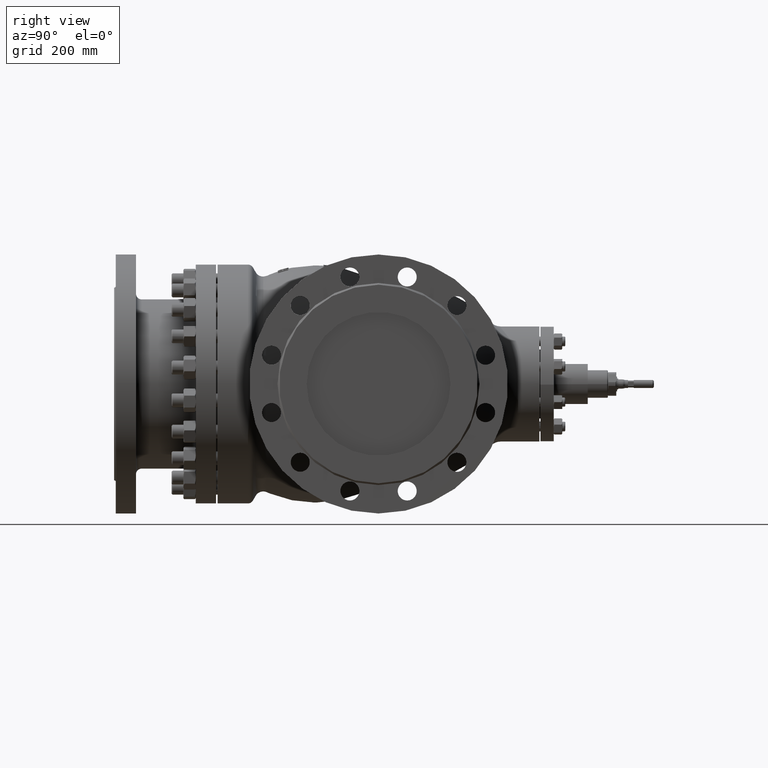
[diagram: clean part render]
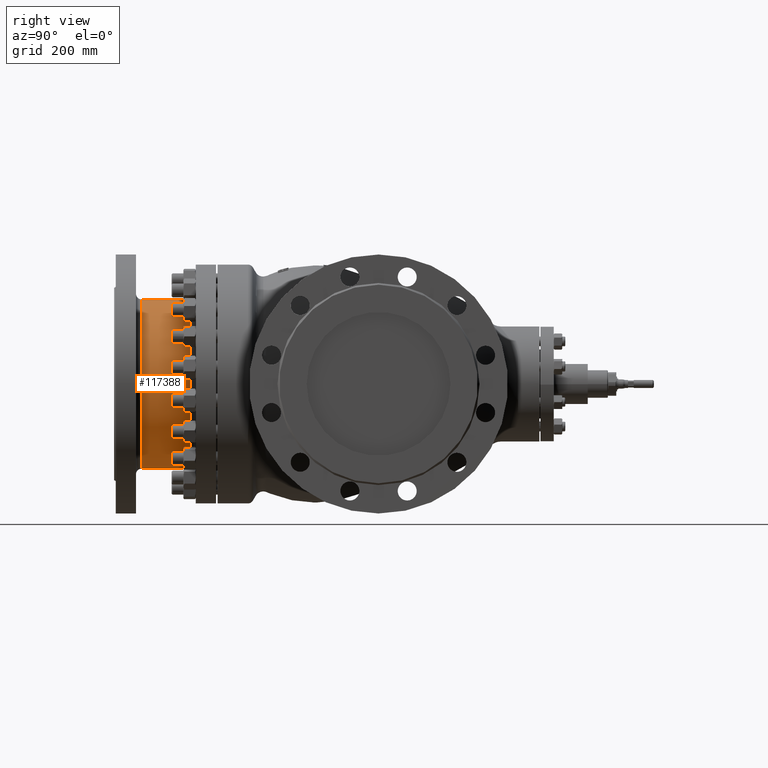
[diagram: same view with one face highlighted and labeled with its STEP entity id]
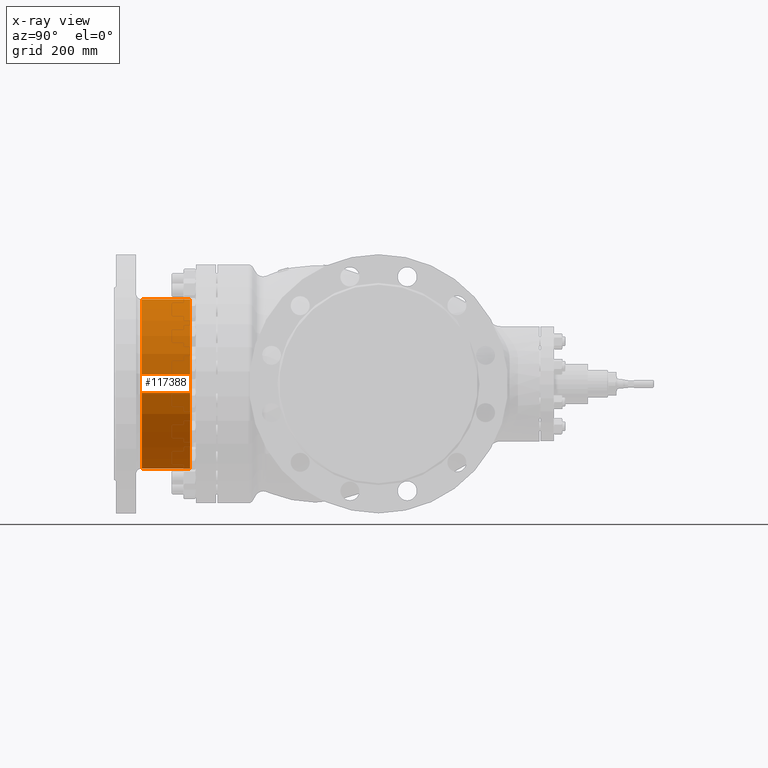
[diagram: x-ray of the same camera — body ghosted, the highlighted face saturated]
A machine part, right view. The second image highlights one B-rep face of the part: STEP entity #117388.
The next image is the same camera in x-ray: the body ghosted, the highlighted face saturated — about 0% of this face is hidden behind the body in this view.
In plain terms, the highlighted cylindrical surface (partial cylindrical patch) has radius 147 mm, axis along (-0, 1, -0).
Its self-contained STEP definition (entity closure, byte-faithful):
#5244 = VERTEX_POINT ( 'NONE', #114996 ) ;
#6325 = DIRECTION ( 'NONE',  ( 0.0000000000000000000, 0.0000000000000000000, 1.000000000000000000 ) ) ;
#10595 = DIRECTION ( 'NONE',  ( -0.0000000000000000000, 1.000000000000000000, -0.0000000000000000000 ) ) ;
#19610 = CYLINDRICAL_SURFACE ( 'NONE', #266022, 147.0000000000000300 ) ;
#55201 = LINE ( 'NONE', #254550, #121403 ) ;
#75007 = DIRECTION ( 'NONE',  ( 0.0000000000000000000, -1.000000000000000000, 0.0000000000000000000 ) ) ;
#79557 = CARTESIAN_POINT ( 'NONE',  ( -7.618905506490136800E-015, -411.5000000000000000, 6.418706557980045500E-015 ) ) ;
#104572 = DIRECTION ( 'NONE',  ( 0.0000000000000000000, 0.0000000000000000000, -1.000000000000000000 ) ) ;
#105649 = DIRECTION ( 'NONE',  ( -0.0000000000000000000, 1.000000000000000000, -0.0000000000000000000 ) ) ;
#108481 = CIRCLE ( 'NONE', #153276, 147.0000000000000300 ) ;
#109138 = EDGE_CURVE ( 'NONE', #5244, #285307, #55201, .T. ) ;
#114996 = CARTESIAN_POINT ( 'NONE',  ( 1.038340244097595800E-014, -411.5000000000000000, -147.0000000000000300 ) ) ;
#117388 = ADVANCED_FACE ( 'NONE', ( #159743 ), #19610, .T. ) ;
#121403 = VECTOR ( 'NONE', #105649, 1000.000000000000000 ) ;
#144830 = EDGE_LOOP ( 'NONE', ( #242227, #207643, #228085, #307606 ) ) ;
#145910 = DIRECTION ( 'NONE',  ( -0.0000000000000000000, 1.000000000000000000, -0.0000000000000000000 ) ) ;
#153276 = AXIS2_PLACEMENT_3D ( 'NONE', #223945, #75007, #248928 ) ;
#159671 = CARTESIAN_POINT ( 'NONE',  ( -7.618905506490136800E-015, -177.0619797109901900, 6.418706557980045500E-015 ) ) ;
#159743 = FACE_OUTER_BOUND ( 'NONE', #144830, .T. ) ;
#170196 = EDGE_CURVE ( 'NONE', #285307, #188319, #108481, .T. ) ;
#188319 = VERTEX_POINT ( 'NONE', #311433 ) ;
#207643 = ORIENTED_EDGE ( 'NONE', *, *, #109138, .T. ) ;
#211362 = VECTOR ( 'NONE', #145910, 1000.000000000000000 ) ;
#216316 = EDGE_CURVE ( 'NONE', #281280, #5244, #257575, .T. ) ;
#223945 = CARTESIAN_POINT ( 'NONE',  ( -7.618905506490136800E-015, -327.5000000000000000, 6.418706557980045500E-015 ) ) ;
#228085 = ORIENTED_EDGE ( 'NONE', *, *, #170196, .T. ) ;
#235443 = CARTESIAN_POINT ( 'NONE',  ( 1.038340244097595800E-014, -327.5000000000000000, -147.0000000000000300 ) ) ;
#242227 = ORIENTED_EDGE ( 'NONE', *, *, #216316, .T. ) ;
#242674 = CARTESIAN_POINT ( 'NONE',  ( -7.618905506490136800E-015, -411.5000000000000000, 147.0000000000000300 ) ) ;
#248928 = DIRECTION ( 'NONE',  ( 0.0000000000000000000, 0.0000000000000000000, 1.000000000000000000 ) ) ;
#253471 = DIRECTION ( 'NONE',  ( -0.0000000000000000000, 1.000000000000000000, -0.0000000000000000000 ) ) ;
#254550 = CARTESIAN_POINT ( 'NONE',  ( 1.038340244097595800E-014, -177.0619797109901900, -147.0000000000000300 ) ) ;
#257575 = CIRCLE ( 'NONE', #289643, 147.0000000000000300 ) ;
#266022 = AXIS2_PLACEMENT_3D ( 'NONE', #159671, #10595, #6325 ) ;
#277414 = LINE ( 'NONE', #319669, #211362 ) ;
#281280 = VERTEX_POINT ( 'NONE', #242674 ) ;
#281451 = EDGE_CURVE ( 'NONE', #281280, #188319, #277414, .T. ) ;
#285307 = VERTEX_POINT ( 'NONE', #235443 ) ;
#289643 = AXIS2_PLACEMENT_3D ( 'NONE', #79557, #253471, #104572 ) ;
#307606 = ORIENTED_EDGE ( 'NONE', *, *, #281451, .F. ) ;
#311433 = CARTESIAN_POINT ( 'NONE',  ( -7.618905506490136800E-015, -327.5000000000000000, 147.0000000000000300 ) ) ;
#319669 = CARTESIAN_POINT ( 'NONE',  ( -7.618905506490136800E-015, -177.0619797109901900, 147.0000000000000300 ) ) ;